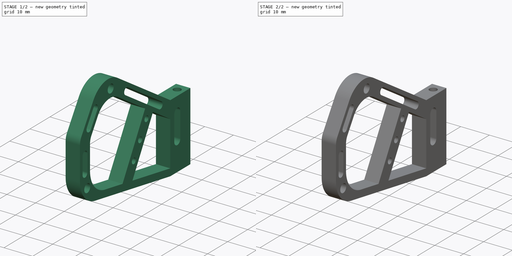
[diagram: build sequence overview — one tinted view per stage of 2, left to right]
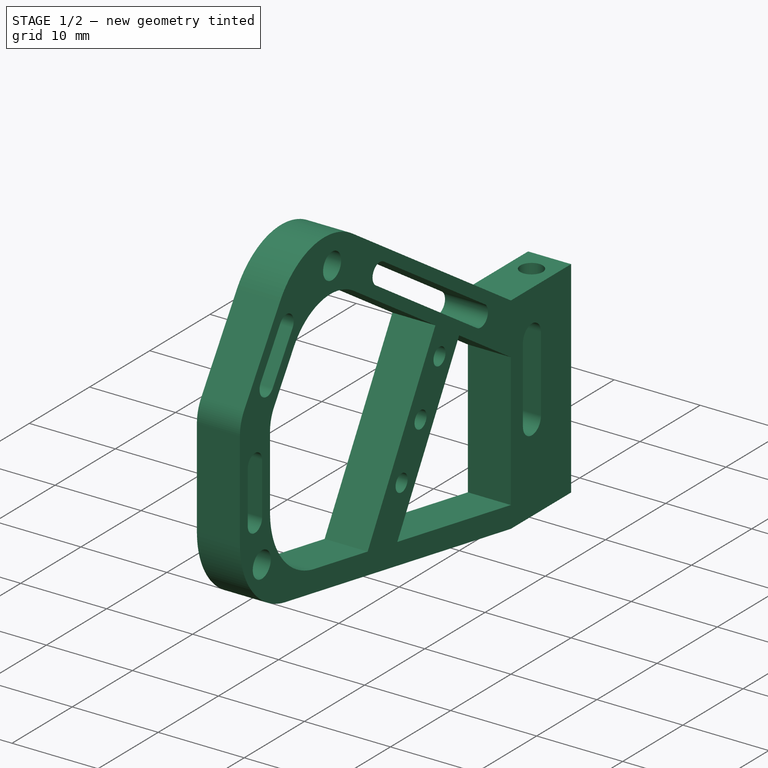
[diagram: stage 1 of 2 — iso view after this stage's code; geometry added in this stage tinted green]
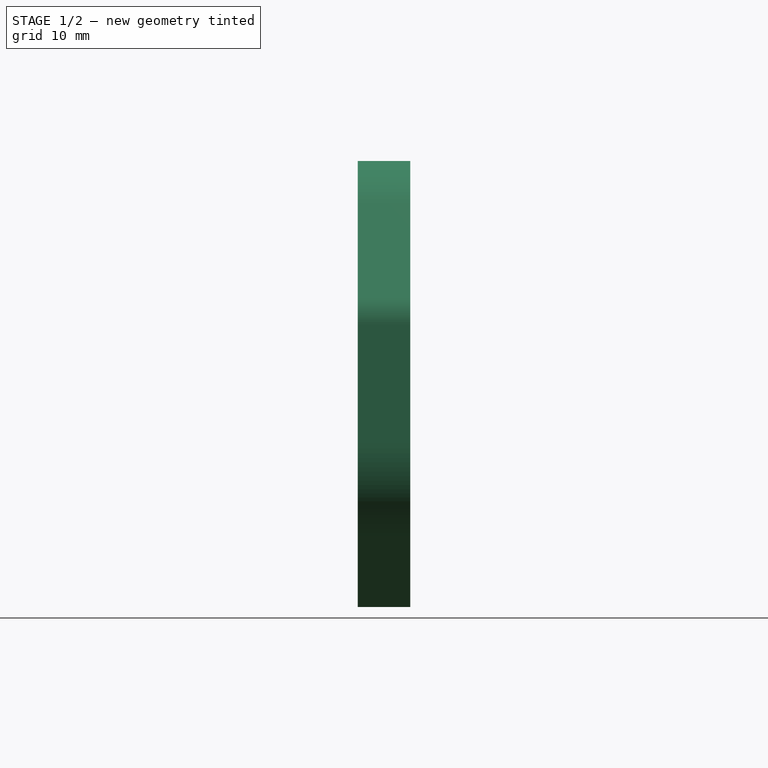
[diagram: stage 1 of 2 — front view after this stage's code; geometry added in this stage tinted green]
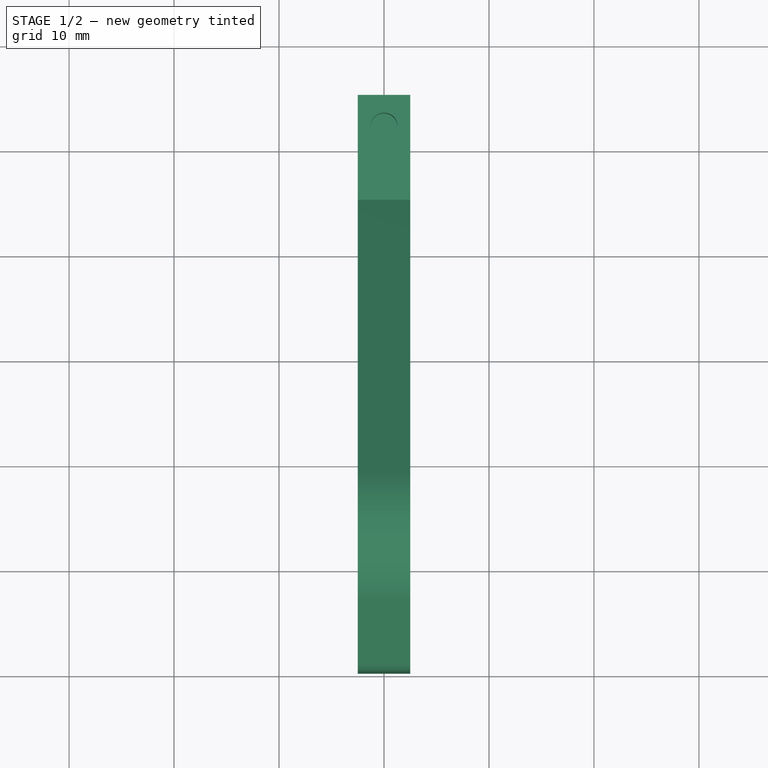
[diagram: stage 1 of 2 — top view after this stage's code; geometry added in this stage tinted green]
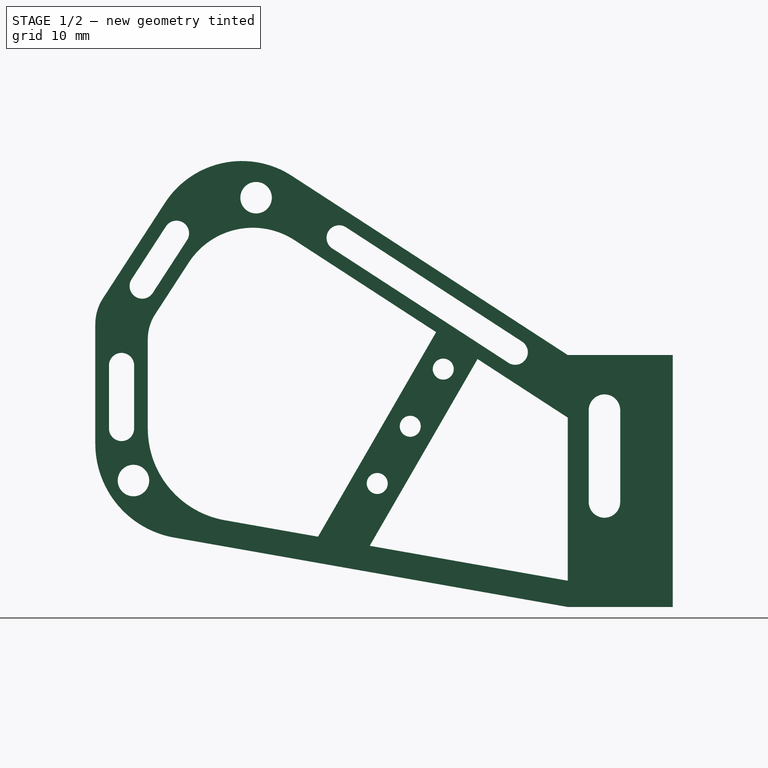
[diagram: stage 1 of 2 — right view after this stage's code; geometry added in this stage tinted green]
FCSTD DOCUMENT  (FreeCAD 0.18RUnknown)
Label: cage
License: All rights reserved
LicenseURL: http://en.wikipedia.org/wiki/All_rights_reserved
objects: Sketcher::SketchObject×3, PartDesign::Pocket×2, PartDesign::Pad×1, PartDesign::Body×1
note: 10 computed .brp shape members not serialized (recipe doc carries the construction recipe); baked Part::Feature solids carry a one-line shape summary decoded from their .brp

FEATURE [Sketcher::SketchObject] Sketch
  MapMode = 5
  Placement = pos=(0,0,0) rot=(0.57735,0.57735,0.57735;2.0944rad)
  Support = -> [YZ_Plane]
  expr: Constraints[88] = anomaly#Spreadsheet.aluHeight
  sketch-geometry (59):
    g0: LineSegment StartX=5 StartY=-12 StartZ=0 EndX=-5 EndY=-12 EndZ=0
    g1: LineSegment StartX=5 StartY=12 StartZ=0 EndX=-5 EndY=12 EndZ=0
    g2: LineSegment StartX=-5 StartY=12 StartZ=0 EndX=-31.282 EndY=29.0677 EndZ=0
    g3: LineSegment StartX=-5 StartY=-12 StartZ=0 EndX=-42.491 EndY=-5.38932 EndZ=0
    g4: LineSegment StartX=-50 StartY=3.55952 StartZ=0 EndX=-50 EndY=14.9307 EndZ=0
    g5: LineSegment StartX=-49.266 StartY=17.4088 StartZ=0 EndX=-43.3621 EndY=26.5 EndZ=0
    g6: ArcOfCircle CenterX=-36.0382 CenterY=21.7438 CenterZ=0 NormalX=0 NormalY=0 NormalZ=1 AngleXU=0 Radius=8.73275 StartAngle=0.994838 EndAngle=2.56563
    g7: ArcOfCircle CenterX=-45.45 CenterY=14.9307 CenterZ=0 NormalX=0 NormalY=0 NormalZ=1 AngleXU=0 Radius=4.55 StartAngle=2.56563 EndAngle=3.14159
    g8: ArcOfCircle CenterX=-40.9131 CenterY=3.55952 CenterZ=0 NormalX=0 NormalY=0 NormalZ=1 AngleXU=0 Radius=9.08689 StartAngle=3.14159 EndAngle=4.53786
    g9: LineSegment StartX=-5 StartY=6.03818 StartZ=0 EndX=-5 EndY=-9.5 EndZ=0
    g10: LineSegment StartX=-41.0943 StartY=20.8117 StartZ=0 EndX=-44.2992 EndY=15.8766 EndZ=0
    g11: LineSegment StartX=-45 StartY=13.5106 StartZ=0 EndX=-45 EndY=5 EndZ=0
    g12: ArcOfCircle CenterX=-34.9986 CenterY=16.8531 CenterZ=0 NormalX=0 NormalY=0 NormalZ=1 AngleXU=0 Radius=7.26829 StartAngle=0.994838 EndAngle=2.56563
    g13: ArcOfCircle CenterX=-40.6559 CenterY=13.5106 CenterZ=0 NormalX=0 NormalY=0 NormalZ=1 AngleXU=0 Radius=4.3441 StartAngle=2.56563 EndAngle=3.14159
    g14: ArcOfCircle CenterX=-36.1251 CenterY=5 CenterZ=0 NormalX=0 NormalY=0 NormalZ=1 AngleXU=0 Radius=8.87489 StartAngle=3.14159 EndAngle=4.53786
    g15: Circle CenterX=-34.684 CenterY=26.9829 CenterZ=0 NormalX=0 NormalY=0 NormalZ=1 AngleXU=0 Radius=1.5
    g16: Circle CenterX=-46.3648 CenterY=0.041977 CenterZ=0 NormalX=0 NormalY=0 NormalZ=1 AngleXU=0 Radius=1.5
    g17: ArcOfCircle CenterX=-26.7734 CenterY=23.1589 CenterZ=0 NormalX=0 NormalY=0 NormalZ=1 AngleXU=0 Radius=1.2 StartAngle=0.994838 EndAngle=4.13643
    g18: ArcOfCircle CenterX=-10 CenterY=12.2661 CenterZ=0 NormalX=0 NormalY=0 NormalZ=1 AngleXU=0 Radius=1.2 StartAngle=4.13643 EndAngle=7.27802
    g19: LineSegment StartX=-27.427 StartY=22.1525 StartZ=0 EndX=-10.6536 EndY=11.2597 EndZ=0
    g20: LineSegment StartX=-26.1198 StartY=24.1653 StartZ=0 EndX=-9.34643 EndY=13.2725 EndZ=0
    g21: ArcOfCircle CenterX=-45.5354 CenterY=18.5632 CenterZ=0 NormalX=0 NormalY=0 NormalZ=1 AngleXU=0 Radius=1.2 StartAngle=2.56563 EndAngle=5.70723
    g22: ArcOfCircle CenterX=-42.2675 CenterY=23.5952 CenterZ=0 NormalX=0 NormalY=0 NormalZ=1 AngleXU=0 Radius=1.2 StartAngle=5.70723 EndAngle=8.84882
    g23: LineSegment StartX=-44.529 StartY=17.9097 StartZ=0 EndX=-41.2611 EndY=22.9417 EndZ=0
    g24: LineSegment StartX=-46.5418 StartY=19.2168 StartZ=0 EndX=-43.2739 EndY=24.2488 EndZ=0
    g25: ArcOfCircle CenterX=-47.5 CenterY=11 CenterZ=0 NormalX=0 NormalY=0 NormalZ=1 AngleXU=0 Radius=1.2 StartAngle=0 EndAngle=3.14159
    g26: ArcOfCircle CenterX=-47.5 CenterY=5 CenterZ=0 NormalX=0 NormalY=0 NormalZ=1 AngleXU=0 Radius=1.2 StartAngle=3.14159 EndAngle=6.28319
    g27: LineSegment StartX=-48.7 StartY=11 StartZ=0 EndX=-48.7 EndY=5 EndZ=0
    g28: LineSegment StartX=-46.3 StartY=11 StartZ=0 EndX=-46.3 EndY=5 EndZ=0
    g29: LineSegment [constr] StartX=-50 StartY=5 StartZ=0 EndX=-45 EndY=5 EndZ=0
    g30: LineSegment [constr] StartX=-5 StartY=-9.5 StartZ=0 EndX=5 EndY=-9.5 EndZ=0
    g31: LineSegment [constr] StartX=-5 StartY=-12 StartZ=0 EndX=-5 EndY=-9.5 EndZ=0
    g32: LineSegment [constr] StartX=-25.4118 StartY=25.2556 StartZ=0 EndX=-28.135 EndY=21.0622 EndZ=0
    g33: LineSegment StartX=-31.04 StartY=22.9488 StartZ=0 EndX=-17.5345 EndY=14.1782 EndZ=0
    g34: LineSegment StartX=-5 StartY=6.03818 StartZ=0 EndX=-13.5886 EndY=11.6157 EndZ=0
    g35: LineSegment StartX=-37.6662 StartY=-3.74007 StartZ=0 EndX=-28.7838 EndY=-5.30627 EndZ=0
    g36: LineSegment StartX=-23.8598 StartY=-6.17451 StartZ=0 EndX=-5 EndY=-9.5 EndZ=0
    g37: LineSegment StartX=-17.5345 StartY=14.1782 StartZ=0 EndX=-28.7838 EndY=-5.30627 EndZ=0
    g38: LineSegment StartX=-23.8598 StartY=-6.17451 StartZ=0 EndX=-13.5886 EndY=11.6157 EndZ=0
    g39: Circle CenterX=-20 CenterY=5.20933 CenterZ=0 NormalX=0 NormalY=0 NormalZ=1 AngleXU=0 Radius=1
    g40: LineSegment [constr] StartX=-14.8481 StartY=-10.2635 StartZ=0 EndX=-14.4206 EndY=-7.8389 EndZ=0
    g41: LineSegment [constr] StartX=-36.5138 StartY=-6.44326 StartZ=0 EndX=-36.0863 EndY=-4.01864 EndZ=0
    g42: LineSegment [constr] StartX=-13.5886 StartY=11.6157 StartZ=0 EndX=-10.8654 EndY=15.8091 EndZ=0
    g43: LineSegment [constr] StartX=-22.0345 StartY=6.38395 StartZ=0 EndX=-17.9655 EndY=4.03472 EndZ=0
    g44: LineSegment [constr] StartX=-5 StartY=12 StartZ=0 EndX=-5 EndY=6.03818 EndZ=0
    g45: LineSegment StartX=5 StartY=-12 StartZ=0 EndX=5 EndY=-9.5 EndZ=0
    g46: LineSegment [constr] StartX=-42.3494 StartY=18.879 StartZ=0 EndX=-46.5428 EndY=21.6022 EndZ=0
    g47: LineSegment [constr] StartX=-45.5354 StartY=18.5632 StartZ=0 EndX=-42.2675 EndY=23.5952 EndZ=0
    g48: GeomPoint X=-44.4461 Y=20.2406 Z=0
    g49: LineSegment StartX=5 StartY=12 StartZ=0 EndX=5 EndY=-9.5 EndZ=0
    g50: ArcOfCircle CenterX=-1.5 CenterY=6.74617 CenterZ=0 NormalX=0 NormalY=0 NormalZ=1 AngleXU=0 Radius=1.5 StartAngle=0 EndAngle=3.14159
    g51: ArcOfCircle CenterX=-1.5 CenterY=-2 CenterZ=0 NormalX=0 NormalY=0 NormalZ=1 AngleXU=0 Radius=1.5 StartAngle=3.14159 EndAngle=6.28319
    g52: LineSegment StartX=-3 StartY=6.74617 StartZ=0 EndX=-3 EndY=-2 EndZ=0
    g53: LineSegment StartX=0 StartY=6.74617 StartZ=0 EndX=0 EndY=-2 EndZ=0
    g54: LineSegment [constr] StartX=-26.7734 StartY=23.1589 StartZ=0 EndX=-1.5 EndY=6.74617 EndZ=0
    g55: LineSegment [constr] StartX=-18.8895 StartY=11.8313 StartZ=0 EndX=-14.8205 EndY=9.48202 EndZ=0
    g56: Circle CenterX=-16.855 CenterY=10.6566 CenterZ=0 NormalX=0 NormalY=0 NormalZ=1 AngleXU=0 Radius=1
    g57: LineSegment [constr] StartX=-25.1795 StartY=0.936651 StartZ=0 EndX=-21.1105 EndY=-1.41258 EndZ=0
    g58: Circle CenterX=-23.145 CenterY=-0.237965 CenterZ=0 NormalX=0 NormalY=0 NormalZ=1 AngleXU=0 Radius=1
  constraints (154):
    c: Horizontal(g1)
    c: Tangent(g2,g6) = -1.5708
    c: Tangent(g5,g6) = 1.5708
    c: Tangent(g4,g7) = 1.5708
    c: Tangent(g5,g7) = 1.5708
    c: Tangent(g4,g8) = 1.5708
    c: Tangent(g3,g8) = 1.5708
    c: Tangent(g10,g12) = -1.5708
    c: Tangent(g11,g13) = -1.5708
    c: Tangent(g10,g13) = -1.5708
    c: Tangent(g11,g14) = -1.5708
    c: Parallel(g10,g5)
    c: Parallel(g11,g4)
    c: Radius(g16) = 1.5
    c: Equal(g16,g15)
    c: Tangent(g17,g20) = 1.5708
    c: Tangent(g17,g19) = -1.5708
    c: Tangent(g19,g18) = -1.5708
    c: Tangent(g20,g18) = 1.5708
    c: Equal(g17,g18)
    c: Parallel(g20,g2)
    c: Tangent(g21,g24) = 1.5708
    c: Tangent(g21,g23) = -1.5708
    c: Tangent(g23,g22) = -1.5708
    c: Tangent(g24,g22) = 1.5708
    c: Equal(g21,g22)
    c: Parallel(g24,g5)
    c: Tangent(g25,g28) = 1.5708
    c: Tangent(g25,g27) = -1.5708
    c: Tangent(g27,g26) = -1.5708
    c: Tangent(g28,g26) = 1.5708
    c: Equal(g25,g26)
    c: Parallel(g27,g4)
    c: Equal(g22,g17)
    c: PointOnObject(g29,g4)
    c: Perpendicular(g29,g11) = 4.71239
    c: Symmetric(g29,g29,g26)
    c: Equal(g25,g21)
    c: DistanceX(g0,g0) = 10
    c: DistanceY(g0,g9) = 2.5
    c: Distance(g29,g29) = 5
    c: Vertical(g4)
    c: Equal(g28,g23)
    c: Coincident(g30,g9)
    c: Symmetric(g9,g30,g-2)
    c: Distance(g21,g22) = 6
    c: PointOnObject(g29,g14)
    c: Coincident(g9,g31)
    c: Angle(g1,g2) = 2.56563
    c: PointOnObject(g32,g2)
    c: Perpendicular(g2,g32)
    c: Symmetric(g32,g32,g17)
    c: Distance(g32,g32) = 5
    c: Coincident(g34,g9)
    c: Parallel(g33,g2)
    c: Parallel(g34,g2)
    c: PointOnObject(g32,g33)
    c: Parallel(g3,g35)
    c: Parallel(g36,g3)
    c: Coincident(g37,g33)
    c: Coincident(g37,g35)
    c: Coincident(g38,g36)
    c: Coincident(g38,g34)
    c: Tangent(g35,g14) = -1.5708
    c: Tangent(g33,g12) = 1.5708
    c: Parallel(g37,g38)
    c: Radius(g39) = 1
    c: Angle(g5,g2) = 1.5708
    c: Coincident(g36,g9)
    c: Angle(g38,g9) = 0.523599
    c: PointOnObject(g40,g3)
    c: PointOnObject(g40,g36)
    c: PointOnObject(g41,g3)
    c: PointOnObject(g41,g35)
    c: Perpendicular(g3,g41)
    c: Equal(g40,g41)
    c: Coincident(g42,g34)
    c: PointOnObject(g42,g2)
    c: Distance(g42) = 5
    c: Distance(g35,g36) = 5
    c: PointOnObject(g43,g38)
    c: Perpendicular(g37,g43)
    c: Symmetric(g43,g43,g39)
    c: DistanceX(g4,g-1) = 50
    c: Perpendicular(g2,g42)
    c: Distance(g17,g18) = 20
    c: Radius(g18) = 1.2
    c: Symmetric(g1,g0,g-1)
    c: DistanceY(g0,g1) = 24
    c: Coincident(g44,g1)
    c: Coincident(g44,g9)
    c: Vertical(g44)
    c: Coincident(g1,g2)
    c: Vertical(g9)
    c: Coincident(g3,g0)
    c: Symmetric(g0,g0,g-2)
    c: Perpendicular(g3,g40)
    c: Coincident(g45,g0)
    c: Coincident(g45,g30)
    c: DistanceX(g39,g-1) = 20
    c: Angle(g9,g36) = 1.39626
    c: PointOnObject(g46,g10)
    c: PointOnObject(g46,g5)
    c: Perpendicular(g46,g5)
    c: Distance(g46) = 5
    c: Coincident(g47,g21)
    c: Coincident(g47,g22)
    c: PointOnObject(g48,g47)
    c: Symmetric(g46,g46,g48)
    c: PointOnObject(g43,g37)
    c: Equal(g1,g0)
    c: Coincident(g49,g1)
    c: Coincident(g49,g30)
    c: Tangent(g50,g53) = 1.5708
    c: Tangent(g50,g52) = -1.5708
    c: Tangent(g52,g51) = -1.5708
    c: Tangent(g53,g51) = 1.5708
    c: Vertical(g52)
    c: Equal(g50,g51)
    c: DistanceY(g0,g51) = 10
    c: Distance(g43,g33) = 9
    c: Coincident(g54,g17)
    c: PointOnObject(g18,g54)
    c: Coincident(g54,g50)
    c: PointOnObject(g50,g-2)
    c: Radius(g50) = 1.5
    c: DistanceY(g-1,g26) = 5
    c: Radius(g7) = 4.55
    c: Distance(g5) = 10.84
    c: Distance(g21,g48) = 2
    c: DistanceY(g5) = 26.5
    c: DistanceX(g15) = -34.684
    c: DistanceY(g15) = 26.9829
    c: DistanceX(g16) = -46.3648
    c: DistanceY(g16) = 0.041977
    c: Distance(g8,g14) = 5
    c: Distance(g6,g12) = 5
    c: Distance(g5,g46) = 5
    c: Distance(g7,g13) = 5
    c: DistanceX(g18,g1) = 5
    c: Distance(g40,g0) = 10
    c: Distance(g41,g40) = 22
    c: PointOnObject(g55,g37)
    c: PointOnObject(g55,g38)
    c: Perpendicular(g37,g55)
    c: Symmetric(g55,g55,g56)
    c: Equal(g39,g56)
    c: Distance(g55,g43) = 6.29
    c: PointOnObject(g57,g37)
    c: Perpendicular(g57,g38) = 1.5708
    c: Equal(g58,g39)
    c: Symmetric(g57,g57,g58)
    c: Distance(g57,g43) = 6.29
    c: Coincident(g31,g0)
FEATURE [PartDesign::Pad] Pad
  Length = 5
  Length2 = 100
  Midplane = true
  Placement = pos=(0,0,0) rot=(0.57735,0.57735,0.57735;2.0944rad)
  Profile = -> Sketch
  Type = 0
  expr: Length = anomaly#Spreadsheet.aluWidth
FEATURE [Sketcher::SketchObject] Sketch002
  MapMode = 5
  Placement = pos=(-1.3549e-12,1.3536e-12,12) rot=(0,0,-1;1.5708rad)
  Support = -> [Pad]
  expr: Constraints[0] = anomaly#Spreadsheet.m3taper
  sketch-geometry (1):
    g0: Circle CenterX=-2 CenterY=0 CenterZ=0 NormalX=0 NormalY=0 NormalZ=1 AngleXU=0 Radius=1.3
  constraints (3):
    c: Radius(g0) = 1.3
    c: DistanceX(g0,g-1) = 2
    c: PointOnObject(g0,g-1)
FEATURE [PartDesign::Pocket] Pocket001
  BaseFeature = -> Pad
  Length = 5
  Length2 = 100
  Placement = pos=(0,0,0) rot=(0.57735,0.57735,0.57735;2.0944rad)
  Profile = -> Sketch002
  Type = 0
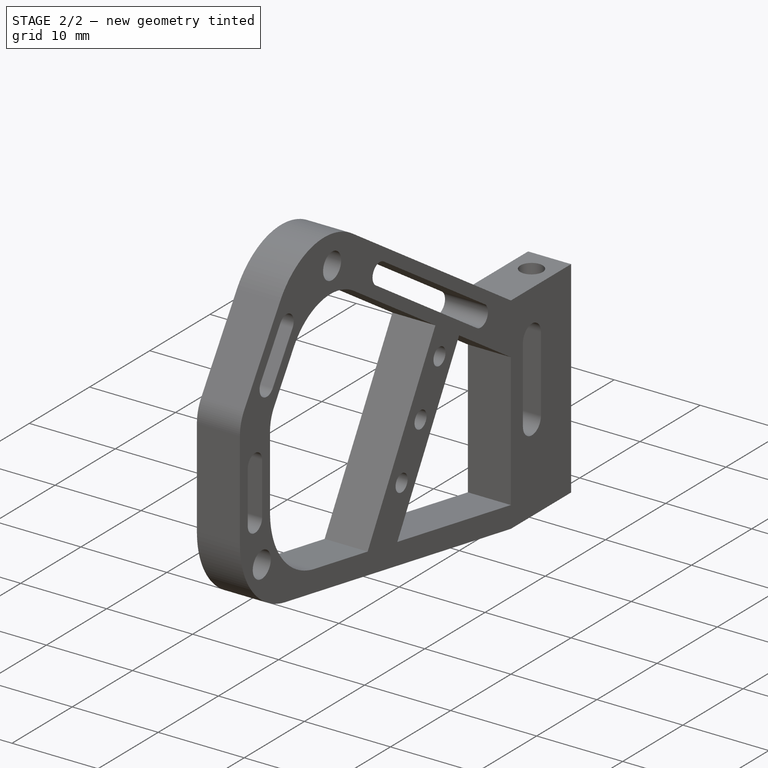
[diagram: stage 2 of 2 — iso view after this stage's code; geometry added in this stage tinted green]
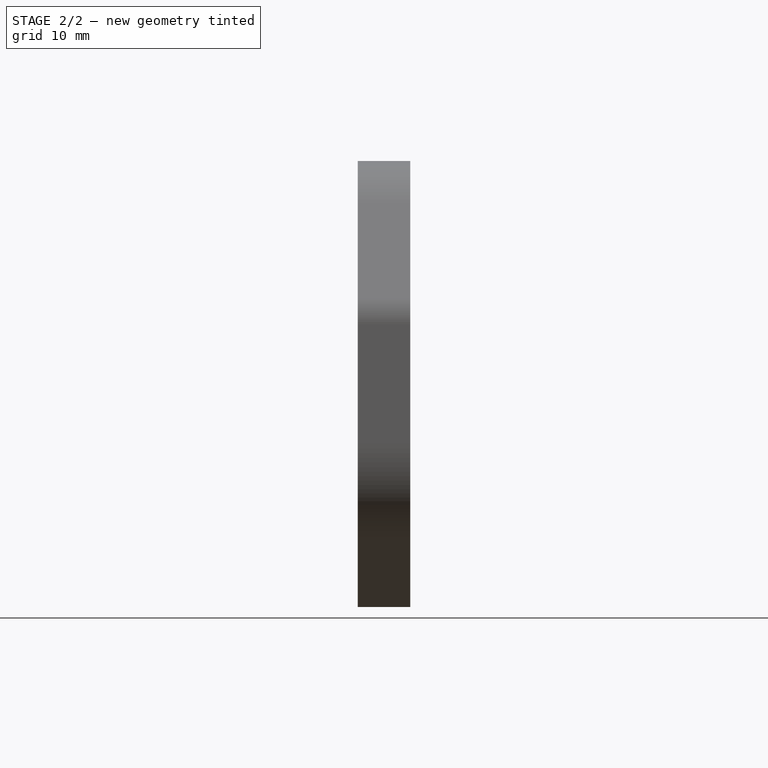
[diagram: stage 2 of 2 — front view after this stage's code; geometry added in this stage tinted green]
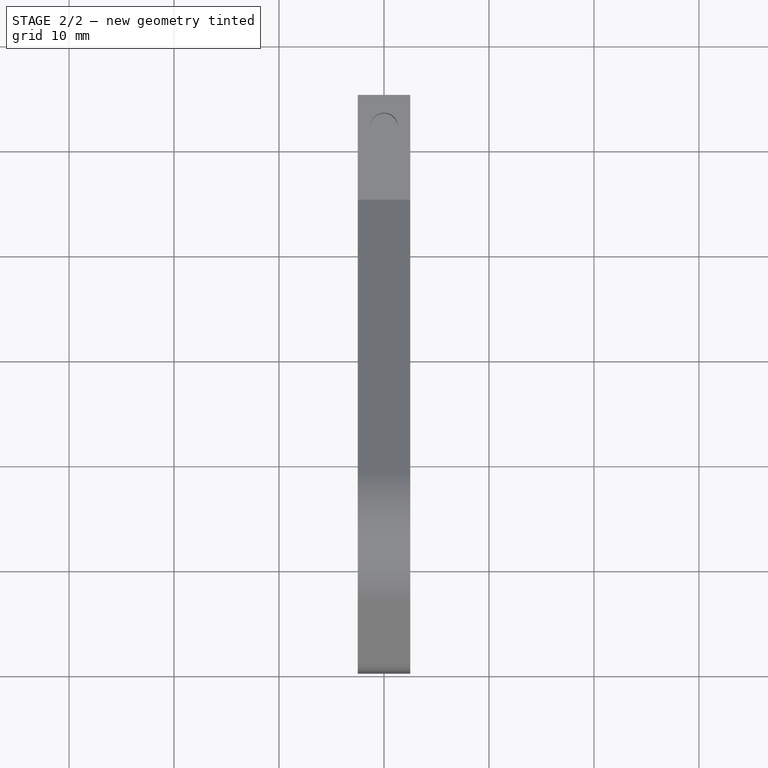
[diagram: stage 2 of 2 — top view after this stage's code; geometry added in this stage tinted green]
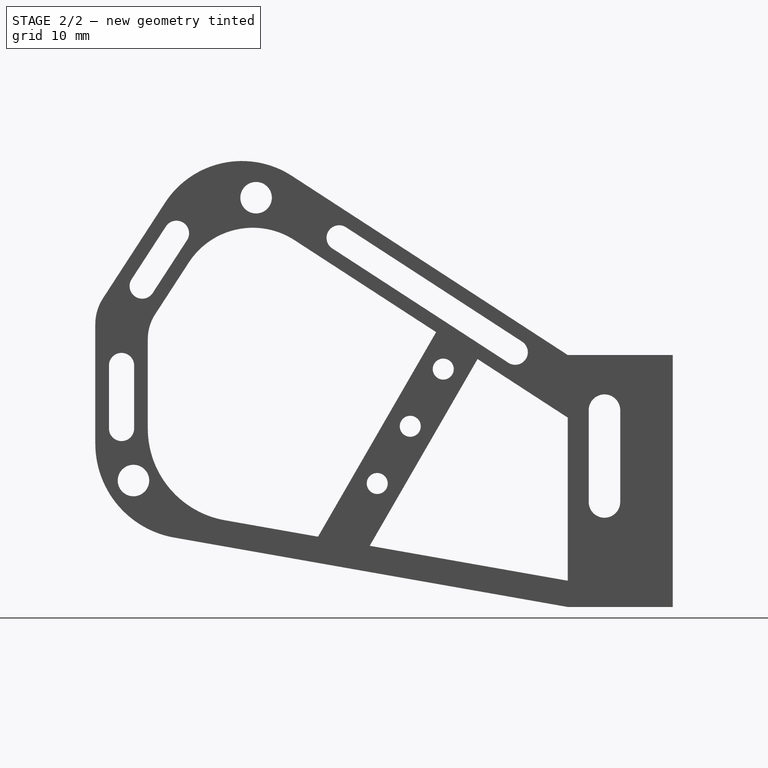
[diagram: stage 2 of 2 — right view after this stage's code; geometry added in this stage tinted green]
FEATURE [Sketcher::SketchObject] Sketch003
  MapMode = 5
  Placement = pos=(1.3549e-12,-1.3536e-12,-12) rot=(0.707107,0.707107,0;3.14159rad)
  Support = -> [Pocket001]
  expr: Constraints[0] = anomaly#Spreadsheet.m3taper
  sketch-geometry (2):
    g0: Circle CenterX=-2 CenterY=0 CenterZ=0 NormalX=0 NormalY=0 NormalZ=1 AngleXU=0 Radius=1.3
    g1: Circle CenterX=2 CenterY=0 CenterZ=0 NormalX=0 NormalY=0 NormalZ=1 AngleXU=0 Radius=1.3
  constraints (6):
    c: Radius(g0) = 1.3
    c: PointOnObject(g0,g-1)
    c: DistanceX(g0,g-1) = 2
    c: DistanceX(g-1,g1) = 2
    c: PointOnObject(g1,g-1)
    c: Equal(g1,g0)
FEATURE [PartDesign::Pocket] Pocket002
  BaseFeature = -> Pocket001
  Length = 5
  Length2 = 100
  Placement = pos=(0,0,0) rot=(0.57735,0.57735,0.57735;2.0944rad)
  Profile = -> Sketch003
  Type = 0
FEATURE [PartDesign::Body] Body
  Group = -> [Sketch,Pad,Sketch002,Pocket001,Sketch003,Pocket002]
  Origin = -> Origin
  Tip = -> Pocket002
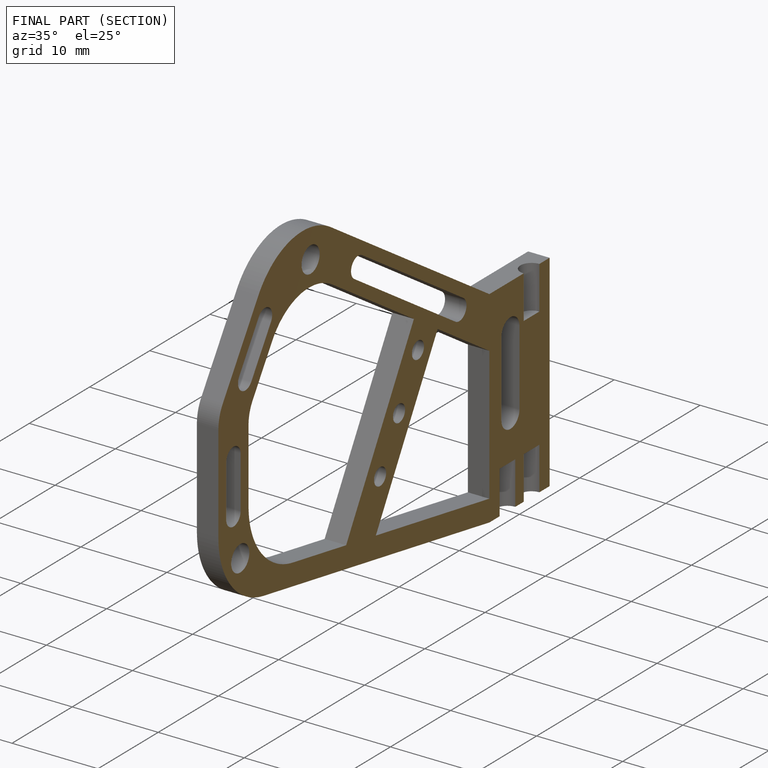
[diagram: finished part — half-section view (interior)]
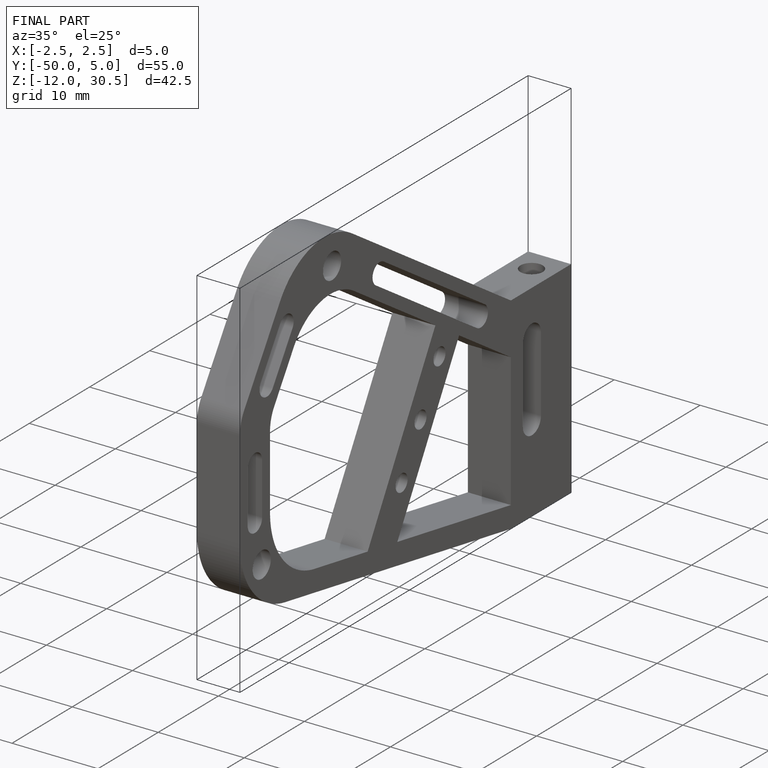
[diagram: finished part — iso view with bounding-box wireframe]
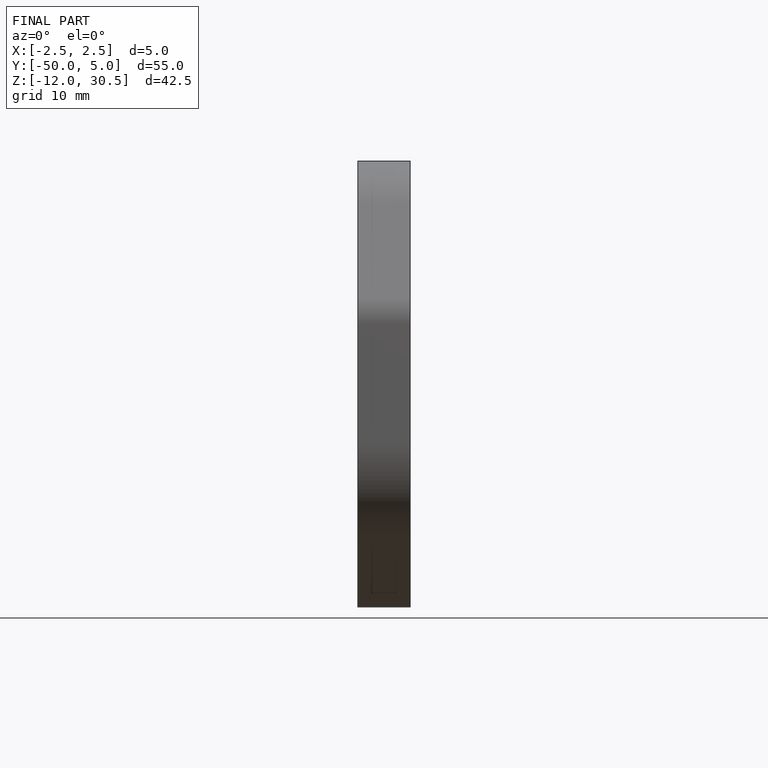
[diagram: finished part — front view with bounding-box wireframe]
